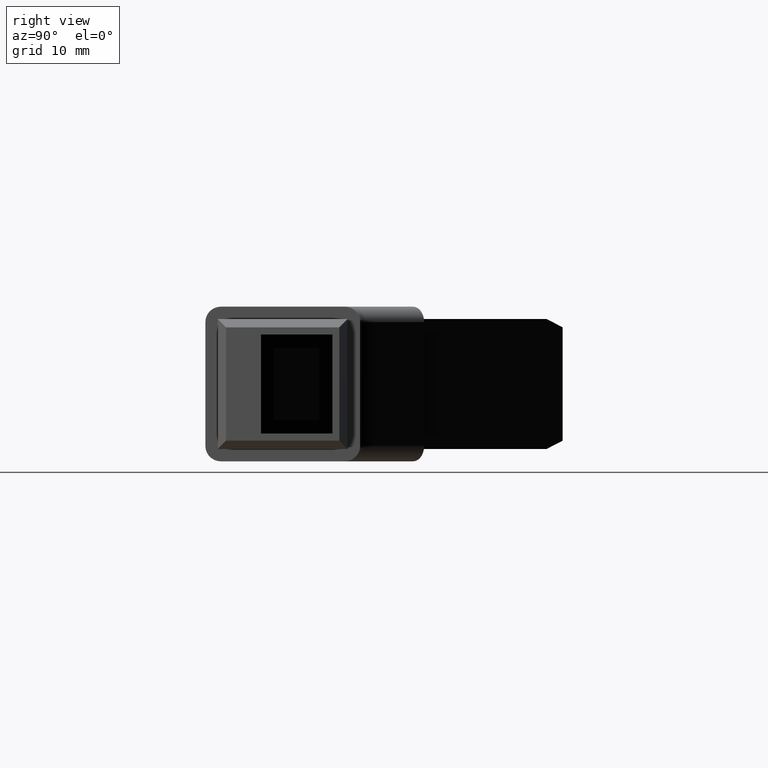
[diagram: clean part render]
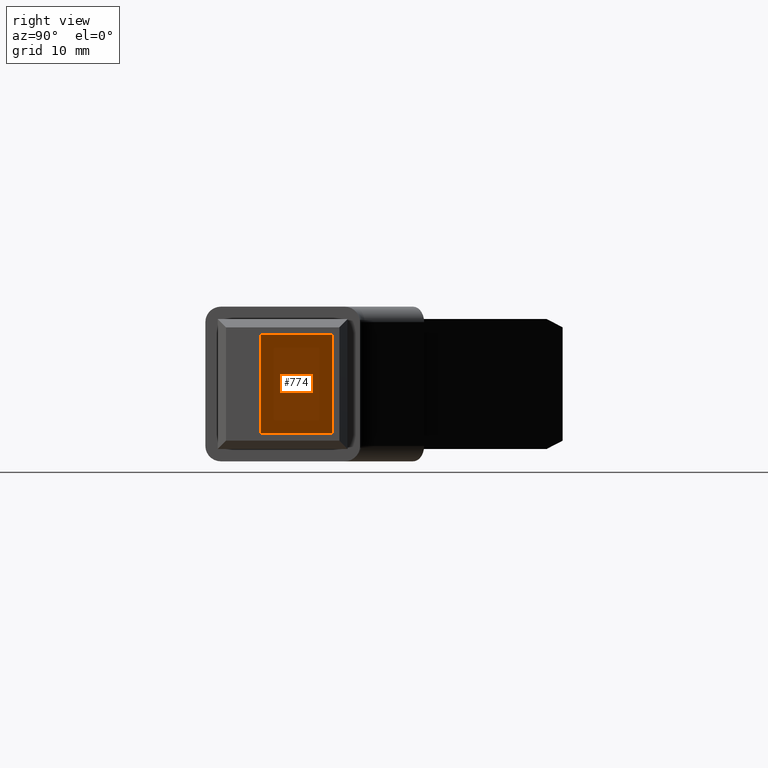
[diagram: same view with one face highlighted and labeled with its STEP entity id]
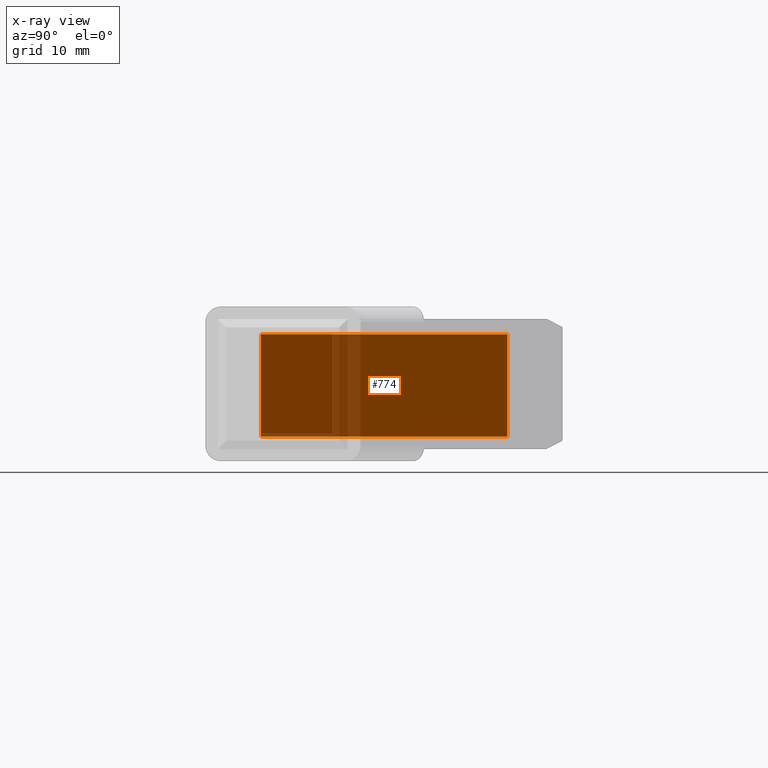
[diagram: x-ray of the same camera — body ghosted, the highlighted face saturated]
A machine part, right view. The second image highlights one B-rep face of the part: STEP entity #774.
The next image is the same camera in x-ray: the body ghosted, the highlighted face saturated — about 72% of this face is hidden behind the body in this view.
In plain terms, the highlighted planar face has unit normal (-0.7071, -0.7071, 0).
Its self-contained STEP definition (entity closure, byte-faithful):
#56=FACE_OUTER_BOUND('',#104,.T.);
#104=EDGE_LOOP('',(#519,#520,#521,#522,#523));
#158=LINE('',#1152,#248);
#159=LINE('',#1156,#249);
#160=LINE('',#1158,#250);
#161=LINE('',#1159,#251);
#162=LINE('',#1160,#252);
#248=VECTOR('',#918,10.);
#249=VECTOR('',#921,10.);
#250=VECTOR('',#922,10.);
#251=VECTOR('',#923,10.);
#252=VECTOR('',#924,10.);
#335=VERTEX_POINT('',#1145);
#338=VERTEX_POINT('',#1150);
#339=VERTEX_POINT('',#1154);
#340=VERTEX_POINT('',#1155);
#341=VERTEX_POINT('',#1157);
#406=EDGE_CURVE('',#335,#338,#158,.T.);
#407=EDGE_CURVE('',#339,#340,#159,.T.);
#408=EDGE_CURVE('',#341,#339,#160,.T.);
#409=EDGE_CURVE('',#341,#335,#161,.T.);
#410=EDGE_CURVE('',#340,#338,#162,.T.);
#519=ORIENTED_EDGE('',*,*,#407,.F.);
#520=ORIENTED_EDGE('',*,*,#408,.F.);
#521=ORIENTED_EDGE('',*,*,#409,.T.);
#522=ORIENTED_EDGE('',*,*,#406,.T.);
#523=ORIENTED_EDGE('',*,*,#410,.F.);
#740=PLANE('',#842);
#774=ADVANCED_FACE('',(#56),#740,.F.);
#842=AXIS2_PLACEMENT_3D('',#1153,#919,#920);
#918=DIRECTION('',(-1.8621957801042E-16,-2.89566015530118E-16,-1.));
#919=DIRECTION('center_axis',(-0.707106781186548,-0.707106781186547,3.36431219583381E-16));
#920=DIRECTION('ref_axis',(2.37892796770269E-16,2.37892796770269E-16,1.));
#921=DIRECTION('',(-2.37892796770269E-16,-2.37892796770269E-16,-1.));
#922=DIRECTION('',(-0.707106781186547,0.707106781186548,0.));
#923=DIRECTION('',(-6.62774071755071E-17,0.,-1.));
#924=DIRECTION('',(0.707106781186547,-0.707106781186548,0.));
#1145=CARTESIAN_POINT('',(-1.44974746830584,-3.50000000000001,4.5));
#1150=CARTESIAN_POINT('',(-1.44974746830584,-3.50000000000002,3.99999999999999));
#1152=CARTESIAN_POINT('',(-1.44974746830584,-3.50000000000002,16.375));
#1153=CARTESIAN_POINT('Origin',(-16.4918514576139,11.542103989308,3.99999999999999));
#1154=CARTESIAN_POINT('',(-41.240588799143,36.2908413308372,20.5));
#1155=CARTESIAN_POINT('',(-41.240588799143,36.2908413308372,3.99999999999999));
#1156=CARTESIAN_POINT('',(-41.240588799143,36.2908413308372,8.25));
#1157=CARTESIAN_POINT('',(-1.44974746830584,-3.50000000000001,20.5));
#1158=CARTESIAN_POINT('',(-16.4918514576138,11.542103989308,20.5));
#1159=CARTESIAN_POINT('',(-1.44974746830584,-3.50000000000001,8.5));
#1160=CARTESIAN_POINT('',(-16.4918514576139,11.542103989308,3.99999999999999));